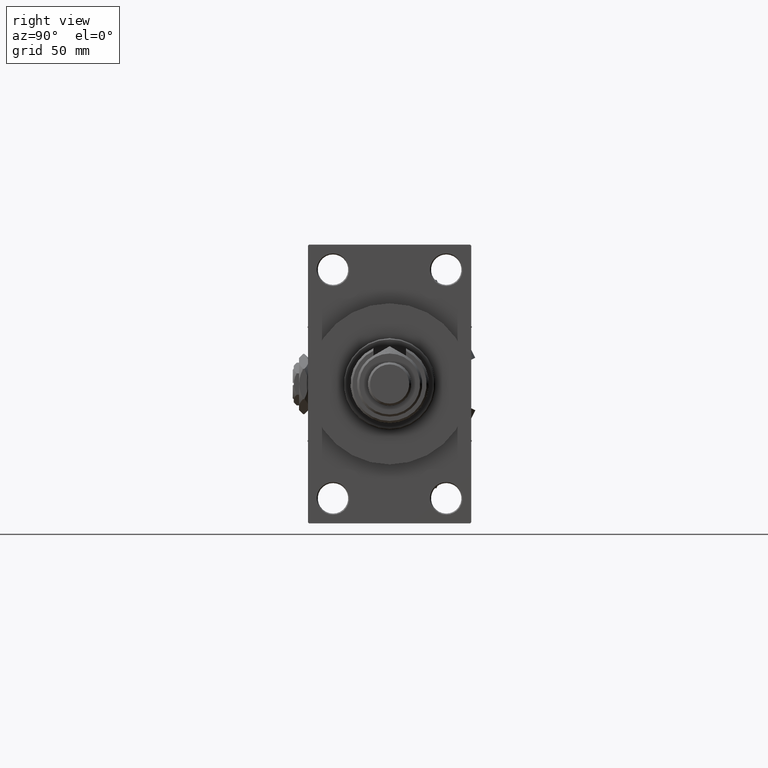
[diagram: clean part render]
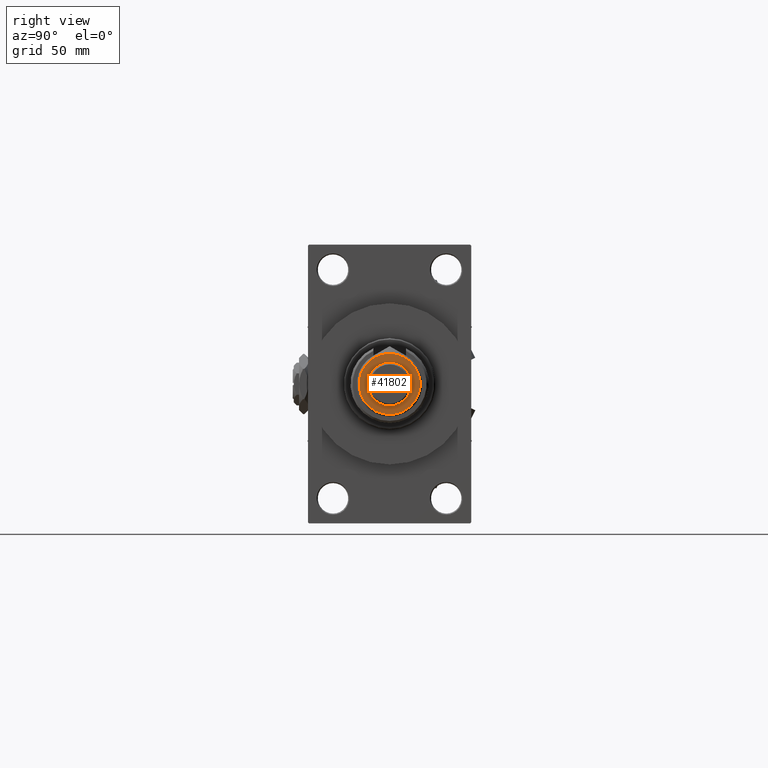
[diagram: same view with one face highlighted and labeled with its STEP entity id]
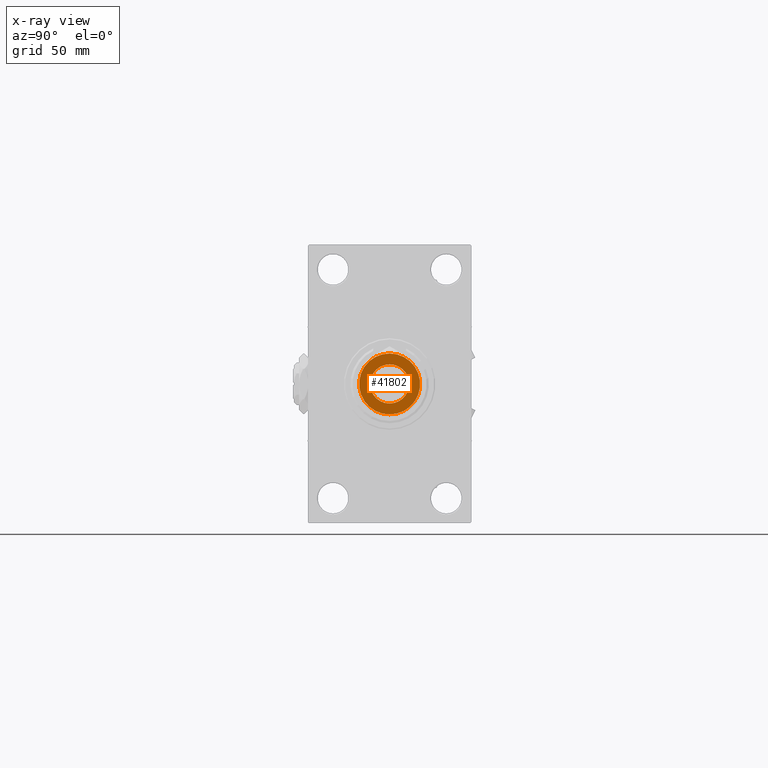
[diagram: x-ray of the same camera — body ghosted, the highlighted face saturated]
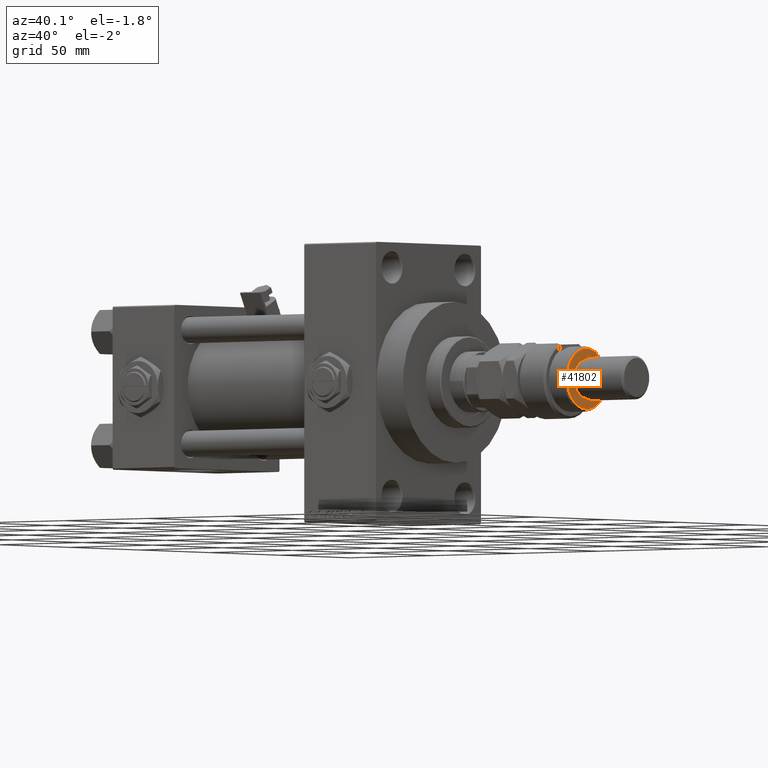
[diagram: same view with one face highlighted and labeled with its STEP entity id]
A machine part, right view. The second image highlights one B-rep face of the part: STEP entity #41802.
The next image is the same camera in x-ray: the body ghosted, the highlighted face saturated — about 0% of this face is hidden behind the body in this view.
A second angle (auxiliary view) of the same face is appended — the face is thin or edge-on in the first view.
In plain terms, the highlighted planar face has unit normal (1, 0, 0).
Its self-contained STEP definition (entity closure, byte-faithful):
#2100 = CIRCLE ( 'NONE', #3820, 13.99999999999997513 ) ;
#2245 = ORIENTED_EDGE ( 'NONE', *, *, #2600, .F. ) ;
#2600 = EDGE_CURVE ( 'NONE', #36445, #26649, #9418, .T. ) ;
#3206 = CARTESIAN_POINT ( 'NONE',  ( 13.99999999999997513, 1.775737858763660437E-15, 26.00000000000000355 ) ) ;
#3820 = AXIS2_PLACEMENT_3D ( 'NONE', #52462, #40367, #36347 ) ;
#6464 = EDGE_LOOP ( 'NONE', ( #7343, #2245 ) ) ;
#7092 = AXIS2_PLACEMENT_3D ( 'NONE', #26790, #18986, #51781 ) ;
#7343 = ORIENTED_EDGE ( 'NONE', *, *, #41244, .F. ) ;
#9418 = CIRCLE ( 'NONE', #24899, 9.000000000000000000 ) ;
#10620 = CARTESIAN_POINT ( 'NONE',  ( 0.000000000000000000, 0.000000000000000000, 26.00000000000000355 ) ) ;
#12862 = EDGE_LOOP ( 'NONE', ( #13832, #38584 ) ) ;
#13832 = ORIENTED_EDGE ( 'NONE', *, *, #38887, .T. ) ;
#14023 = CARTESIAN_POINT ( 'NONE',  ( 0.000000000000000000, 0.000000000000000000, 26.00000000000000355 ) ) ;
#14127 = FACE_BOUND ( 'NONE', #6464, .T. ) ;
#15854 = DIRECTION ( 'NONE',  ( 0.000000000000000000, 0.000000000000000000, 1.000000000000000000 ) ) ;
#16115 = CARTESIAN_POINT ( 'NONE',  ( 0.000000000000000000, 0.000000000000000000, 26.00000000000000355 ) ) ;
#18986 = DIRECTION ( 'NONE',  ( 0.000000000000000000, 0.000000000000000000, 1.000000000000000000 ) ) ;
#23669 = AXIS2_PLACEMENT_3D ( 'NONE', #16115, #15854, #49722 ) ;
#24899 = AXIS2_PLACEMENT_3D ( 'NONE', #14023, #31224, #27452 ) ;
#25002 = CARTESIAN_POINT ( 'NONE',  ( 9.000000000000000000, 1.102182119232617714E-15, 26.00000000000000355 ) ) ;
#26446 = CARTESIAN_POINT ( 'NONE',  ( -9.000000000000000000, 0.000000000000000000, 26.00000000000000355 ) ) ;
#26649 = VERTEX_POINT ( 'NONE', #26446 ) ;
#26790 = CARTESIAN_POINT ( 'NONE',  ( 0.000000000000000000, 0.000000000000000000, 26.00000000000000355 ) ) ;
#27301 = DIRECTION ( 'NONE',  ( 1.000000000000000000, 0.000000000000000000, -0.000000000000000000 ) ) ;
#27452 = DIRECTION ( 'NONE',  ( 1.000000000000000000, 0.000000000000000000, 0.000000000000000000 ) ) ;
#30482 = VERTEX_POINT ( 'NONE', #3206 ) ;
#31067 = PLANE ( 'NONE',  #40876 ) ;
#31224 = DIRECTION ( 'NONE',  ( 0.000000000000000000, 0.000000000000000000, 1.000000000000000000 ) ) ;
#32633 = EDGE_CURVE ( 'NONE', #30482, #39360, #41339, .T. ) ;
#35100 = FACE_OUTER_BOUND ( 'NONE', #12862, .T. ) ;
#36347 = DIRECTION ( 'NONE',  ( 1.000000000000000000, 0.000000000000000000, 0.000000000000000000 ) ) ;
#36420 = CARTESIAN_POINT ( 'NONE',  ( -13.99999999999997513, 0.000000000000000000, 26.00000000000000355 ) ) ;
#36445 = VERTEX_POINT ( 'NONE', #25002 ) ;
#38584 = ORIENTED_EDGE ( 'NONE', *, *, #32633, .T. ) ;
#38887 = EDGE_CURVE ( 'NONE', #39360, #30482, #2100, .T. ) ;
#39360 = VERTEX_POINT ( 'NONE', #36420 ) ;
#40367 = DIRECTION ( 'NONE',  ( 0.000000000000000000, 0.000000000000000000, 1.000000000000000000 ) ) ;
#40876 = AXIS2_PLACEMENT_3D ( 'NONE', #10620, #43416, #27301 ) ;
#41244 = EDGE_CURVE ( 'NONE', #26649, #36445, #51168, .T. ) ;
#41339 = CIRCLE ( 'NONE', #7092, 13.99999999999997513 ) ;
#41802 = ADVANCED_FACE ( 'NONE', ( #35100, #14127 ), #31067, .T. ) ;
#43416 = DIRECTION ( 'NONE',  ( 0.000000000000000000, 0.000000000000000000, 1.000000000000000000 ) ) ;
#49722 = DIRECTION ( 'NONE',  ( 1.000000000000000000, 0.000000000000000000, 0.000000000000000000 ) ) ;
#51168 = CIRCLE ( 'NONE', #23669, 9.000000000000000000 ) ;
#51781 = DIRECTION ( 'NONE',  ( 1.000000000000000000, 0.000000000000000000, 0.000000000000000000 ) ) ;
#52462 = CARTESIAN_POINT ( 'NONE',  ( 0.000000000000000000, 0.000000000000000000, 26.00000000000000355 ) ) ;